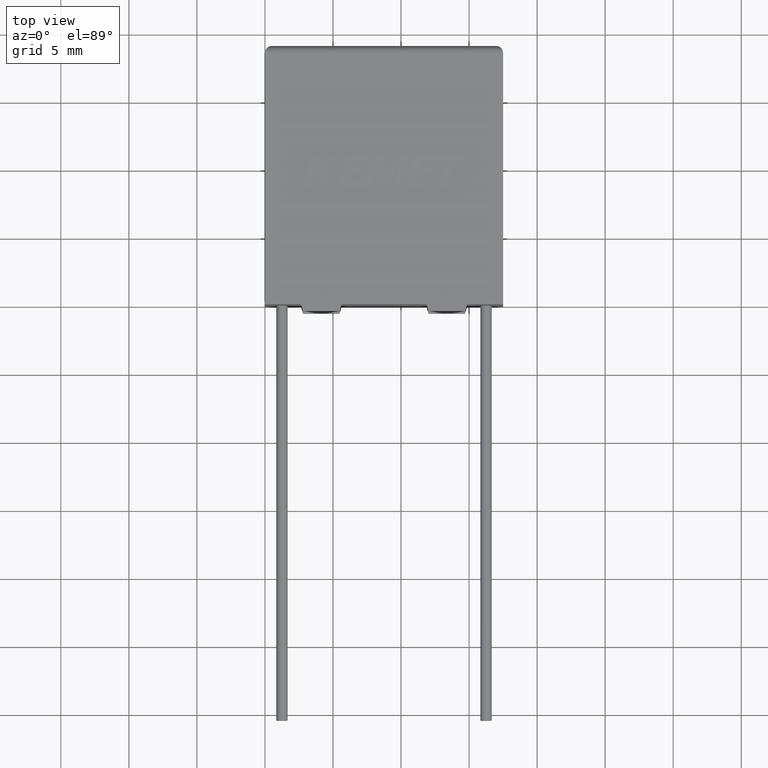
[diagram: clean part render]
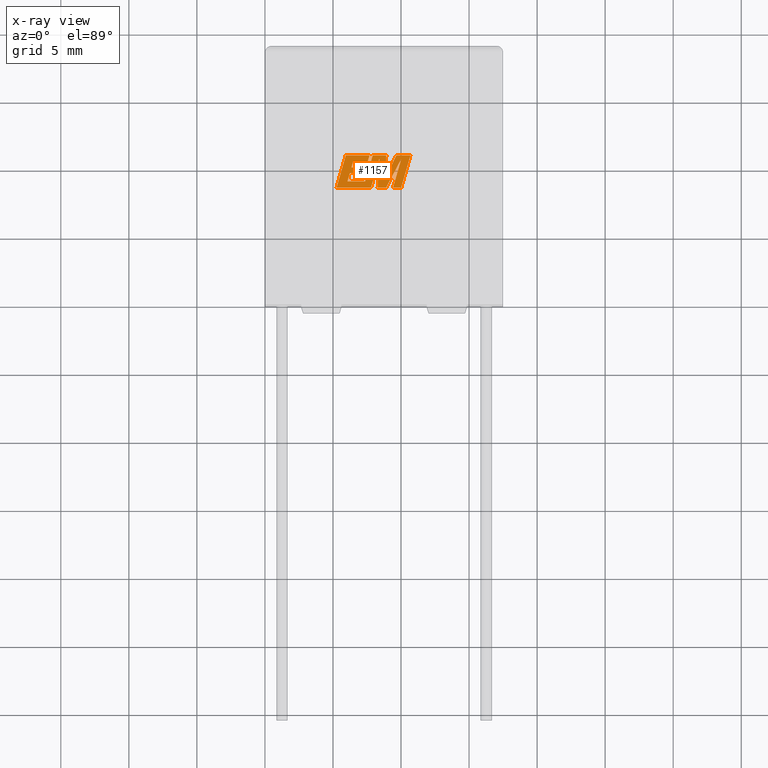
[diagram: x-ray — body ghosted, one internal face saturated and labeled with its STEP entity id]
A machine part, top view, then the same camera in x-ray: the body is ghosted and one INTERNAL B-rep face — a face not visible from any outside direction — is saturated and labeled: STEP entity #1157.
In plain terms, the highlighted planar face has unit normal (0, 0, -1).
Its self-contained STEP definition (entity closure, byte-faithful):
#4 = EDGE_CURVE ( 'NONE', #2884, #320, #2761, .T. ) ;
#30 = ORIENTED_EDGE ( 'NONE', *, *, #1995, .F. ) ;
#63 = DIRECTION ( 'NONE',  ( -1.000000000000000000, 0.0000000000000000000, 0.0000000000000000000 ) ) ;
#87 = VECTOR ( 'NONE', #94, 1000.000000000000000 ) ;
#92 = LINE ( 'NONE', #3004, #2033 ) ;
#94 = DIRECTION ( 'NONE',  ( -1.000000000000000000, 0.0000000000000000000, 0.0000000000000000000 ) ) ;
#98 = VERTEX_POINT ( 'NONE', #2930 ) ;
#112 = CARTESIAN_POINT ( 'NONE',  ( 10.69286888281140300, 10.94587608440335600, 11.50000000000000000 ) ) ;
#126 = VERTEX_POINT ( 'NONE', #1402 ) ;
#135 = CARTESIAN_POINT ( 'NONE',  ( 7.916534120704699100, 10.94587608440335600, 11.50000000000000000 ) ) ;
#180 = DIRECTION ( 'NONE',  ( -0.05596501978068205200, -0.9984327301130245800, 0.0000000000000000000 ) ) ;
#252 = LINE ( 'NONE', #2447, #1818 ) ;
#253 = VERTEX_POINT ( 'NONE', #2313 ) ;
#276 = CARTESIAN_POINT ( 'NONE',  ( 9.418876612286860400, 8.593699999999927300, 11.50000000000000000 ) ) ;
#295 = VECTOR ( 'NONE', #1948, 1000.000000000000000 ) ;
#315 = VECTOR ( 'NONE', #1599, 1000.000000000000000 ) ;
#320 = VERTEX_POINT ( 'NONE', #2705 ) ;
#356 = LINE ( 'NONE', #2773, #1270 ) ;
#367 = ORIENTED_EDGE ( 'NONE', *, *, #2107, .F. ) ;
#391 = CARTESIAN_POINT ( 'NONE',  ( 8.285257363114753900, 8.593699999999927300, 11.50000000000000000 ) ) ;
#419 = VECTOR ( 'NONE', #63, 1000.000000000000000 ) ;
#425 = CARTESIAN_POINT ( 'NONE',  ( 6.355773792693551800, 10.06064706458987200, 11.50000000000000000 ) ) ;
#430 = ORIENTED_EDGE ( 'NONE', *, *, #2641, .F. ) ;
#432 = EDGE_CURVE ( 'NONE', #2449, #2772, #2061, .T. ) ;
#469 = DIRECTION ( 'NONE',  ( -1.000000000000000000, 0.0000000000000000000, 0.0000000000000000000 ) ) ;
#505 = LINE ( 'NONE', #2106, #776 ) ;
#553 = CARTESIAN_POINT ( 'NONE',  ( 5.267348260593836400, 8.593699999999927300, 11.50000000000000000 ) ) ;
#580 = CARTESIAN_POINT ( 'NONE',  ( 7.554755503892309300, 10.49815144438163000, 11.50000000000000000 ) ) ;
#616 = VECTOR ( 'NONE', #3125, 1000.000000000000000 ) ;
#628 = VERTEX_POINT ( 'NONE', #2254 ) ;
#644 = CARTESIAN_POINT ( 'NONE',  ( 7.681918713741795900, 10.94587608440335600, 11.50000000000000000 ) ) ;
#674 = PLANE ( 'NONE',  #850 ) ;
#687 = ORIENTED_EDGE ( 'NONE', *, *, #810, .F. ) ;
#698 = VECTOR ( 'NONE', #2800, 1000.000000000000100 ) ;
#716 = LINE ( 'NONE', #1410, #1181 ) ;
#753 = VERTEX_POINT ( 'NONE', #1043 ) ;
#756 = CARTESIAN_POINT ( 'NONE',  ( 8.912326471646855100, 8.593699999999927300, 11.50000000000000000 ) ) ;
#776 = VECTOR ( 'NONE', #1890, 1000.000000000000100 ) ;
#792 = LINE ( 'NONE', #2195, #295 ) ;
#810 = EDGE_CURVE ( 'NONE', #1555, #3043, #2119, .T. ) ;
#824 = EDGE_CURVE ( 'NONE', #2592, #3222, #3024, .T. ) ;
#830 = VECTOR ( 'NONE', #1431, 1000.000000000000000 ) ;
#850 = AXIS2_PLACEMENT_3D ( 'NONE', #2420, #1434, #3183 ) ;
#851 = CARTESIAN_POINT ( 'NONE',  ( 8.912326471646855100, 8.593699999999927300, 11.50000000000000000 ) ) ;
#903 = VECTOR ( 'NONE', #1914, 1000.000000000000000 ) ;
#908 = ORIENTED_EDGE ( 'NONE', *, *, #2764, .F. ) ;
#912 = DIRECTION ( 'NONE',  ( 1.000000000000000000, 4.833865254349439700E-015, 0.0000000000000000000 ) ) ;
#934 = CARTESIAN_POINT ( 'NONE',  ( 7.241153005273329100, 9.625810394430523300, 11.50000000000000000 ) ) ;
#953 = FACE_OUTER_BOUND ( 'NONE', #1250, .T. ) ;
#961 = LINE ( 'NONE', #1840, #315 ) ;
#974 = EDGE_CURVE ( 'NONE', #2543, #2449, #1205, .T. ) ;
#983 = VERTEX_POINT ( 'NONE', #135 ) ;
#1036 = EDGE_CURVE ( 'NONE', #1734, #2733, #505, .T. ) ;
#1043 = CARTESIAN_POINT ( 'NONE',  ( 6.065143635469668800, 9.041202926892678300, 11.50000000000000000 ) ) ;
#1056 = EDGE_CURVE ( 'NONE', #2654, #3140, #2516, .T. ) ;
#1064 = ORIENTED_EDGE ( 'NONE', *, *, #974, .F. ) ;
#1111 = CARTESIAN_POINT ( 'NONE',  ( 6.483080043273763400, 10.49815144438163000, 11.50000000000000000 ) ) ;
#1133 = VECTOR ( 'NONE', #2717, 1000.000000000000100 ) ;
#1157 = ADVANCED_FACE ( 'NONE', ( #953 ), #674, .T. ) ;
#1181 = VECTOR ( 'NONE', #912, 1000.000000000000000 ) ;
#1205 = LINE ( 'NONE', #1111, #616 ) ;
#1209 = EDGE_CURVE ( 'NONE', #3087, #753, #3088, .T. ) ;
#1239 = CARTESIAN_POINT ( 'NONE',  ( 7.369060026916844000, 9.041202926892678300, 11.50000000000000000 ) ) ;
#1248 = CARTESIAN_POINT ( 'NONE',  ( 7.801364874262980600, 8.593699999999927300, 11.50000000000000000 ) ) ;
#1250 = EDGE_LOOP ( 'NONE', ( #1953, #908, #1791, #2639, #2385, #3089, #1984, #2550, #3055, #2861, #367, #1707, #1064, #1312, #1583, #30, #687, #1397, #1622, #430, #2954, #2306, #2214 ) ) ;
#1263 = VECTOR ( 'NONE', #2042, 1000.000000000000100 ) ;
#1270 = VECTOR ( 'NONE', #1511, 1000.000000000000100 ) ;
#1286 = EDGE_CURVE ( 'NONE', #126, #1322, #3199, .T. ) ;
#1303 = CARTESIAN_POINT ( 'NONE',  ( 7.365355271991178100, 10.06064706458987200, 11.50000000000000000 ) ) ;
#1312 = ORIENTED_EDGE ( 'NONE', *, *, #3071, .F. ) ;
#1313 = CARTESIAN_POINT ( 'NONE',  ( 7.369060026916844000, 9.041202926892678300, 11.50000000000000000 ) ) ;
#1322 = VERTEX_POINT ( 'NONE', #553 ) ;
#1346 = DIRECTION ( 'NONE',  ( 0.4668459304955211400, 0.8843386665637611400, 0.0000000000000000000 ) ) ;
#1369 = LINE ( 'NONE', #1528, #1263 ) ;
#1397 = ORIENTED_EDGE ( 'NONE', *, *, #2282, .F. ) ;
#1402 = CARTESIAN_POINT ( 'NONE',  ( 5.944209849470560400, 10.94587608440335600, 11.50000000000000000 ) ) ;
#1410 = CARTESIAN_POINT ( 'NONE',  ( 7.382684654667560400, 8.593699999999927300, 11.50000000000000000 ) ) ;
#1414 = LINE ( 'NONE', #112, #87 ) ;
#1431 = DIRECTION ( 'NONE',  ( -0.4443210308329059200, -0.8958676361827030400, 0.0000000000000000000 ) ) ;
#1434 = DIRECTION ( 'NONE',  ( 0.0000000000000000000, 0.0000000000000000000, -1.000000000000000000 ) ) ;
#1503 = LINE ( 'NONE', #851, #2912 ) ;
#1511 = DIRECTION ( 'NONE',  ( 0.2740217765954066100, 0.9617234872620595800, 0.0000000000000000000 ) ) ;
#1513 = CARTESIAN_POINT ( 'NONE',  ( 7.554755503892309300, 10.49815144438163000, 11.50000000000000000 ) ) ;
#1517 = EDGE_CURVE ( 'NONE', #253, #1734, #2188, .T. ) ;
#1528 = CARTESIAN_POINT ( 'NONE',  ( 7.801364874262980600, 8.593699999999927300, 11.50000000000000000 ) ) ;
#1555 = VERTEX_POINT ( 'NONE', #1924 ) ;
#1583 = ORIENTED_EDGE ( 'NONE', *, *, #824, .F. ) ;
#1594 = CARTESIAN_POINT ( 'NONE',  ( 7.365355271991178100, 10.06064706458987200, 11.50000000000000000 ) ) ;
#1599 = DIRECTION ( 'NONE',  ( 0.2793947940878287500, 0.9601763114327596100, 0.0000000000000000000 ) ) ;
#1622 = ORIENTED_EDGE ( 'NONE', *, *, #1209, .F. ) ;
#1649 = LINE ( 'NONE', #3173, #2170 ) ;
#1653 = VECTOR ( 'NONE', #2127, 1000.000000000000000 ) ;
#1665 = CARTESIAN_POINT ( 'NONE',  ( 9.418876612286860400, 8.593699999999927300, 11.50000000000000000 ) ) ;
#1676 = DIRECTION ( 'NONE',  ( 1.000000000000000000, 0.0000000000000000000, 0.0000000000000000000 ) ) ;
#1690 = VECTOR ( 'NONE', #1676, 1000.000000000000000 ) ;
#1707 = ORIENTED_EDGE ( 'NONE', *, *, #432, .F. ) ;
#1734 = VERTEX_POINT ( 'NONE', #2235 ) ;
#1783 = CARTESIAN_POINT ( 'NONE',  ( 5.944209849470560400, 10.94587608440335600, 11.50000000000000000 ) ) ;
#1789 = EDGE_CURVE ( 'NONE', #2733, #983, #1830, .T. ) ;
#1791 = ORIENTED_EDGE ( 'NONE', *, *, #4, .F. ) ;
#1818 = VECTOR ( 'NONE', #2400, 1000.000000000000100 ) ;
#1830 = LINE ( 'NONE', #2135, #903 ) ;
#1840 = CARTESIAN_POINT ( 'NONE',  ( 6.355773792693551800, 10.06064706458987200, 11.50000000000000000 ) ) ;
#1890 = DIRECTION ( 'NONE',  ( 0.05375259206908267900, 0.9985542843760947300, 0.0000000000000000000 ) ) ;
#1896 = EDGE_CURVE ( 'NONE', #1322, #2365, #716, .T. ) ;
#1914 = DIRECTION ( 'NONE',  ( -1.000000000000000000, 0.0000000000000000000, 0.0000000000000000000 ) ) ;
#1921 = VECTOR ( 'NONE', #3041, 1000.000000000000000 ) ;
#1924 = CARTESIAN_POINT ( 'NONE',  ( 6.231714566706590300, 9.625810394430523300, 11.50000000000000000 ) ) ;
#1939 = LINE ( 'NONE', #2384, #1653 ) ;
#1948 = DIRECTION ( 'NONE',  ( -1.000000000000000000, 0.0000000000000000000, 0.0000000000000000000 ) ) ;
#1953 = ORIENTED_EDGE ( 'NONE', *, *, #2609, .F. ) ;
#1958 = CARTESIAN_POINT ( 'NONE',  ( 8.918242698049985200, 10.94587608440335600, 11.50000000000000000 ) ) ;
#1984 = ORIENTED_EDGE ( 'NONE', *, *, #1056, .F. ) ;
#1995 = EDGE_CURVE ( 'NONE', #3043, #2592, #3139, .T. ) ;
#2025 = DIRECTION ( 'NONE',  ( -0.2760118818968562100, -0.9611542233438689100, 0.0000000000000000000 ) ) ;
#2033 = VECTOR ( 'NONE', #2025, 1000.000000000000200 ) ;
#2042 = DIRECTION ( 'NONE',  ( 0.2759782365590801000, 0.9611638845408936300, 0.0000000000000000000 ) ) ;
#2061 = LINE ( 'NONE', #1513, #698 ) ;
#2106 = CARTESIAN_POINT ( 'NONE',  ( 8.827784731893460800, 9.265451267950634700, 11.50000000000000000 ) ) ;
#2107 = EDGE_CURVE ( 'NONE', #2772, #126, #792, .T. ) ;
#2119 = LINE ( 'NONE', #2816, #2866 ) ;
#2127 = DIRECTION ( 'NONE',  ( -0.2762517575166160700, -0.9610853065513907900, 0.0000000000000000000 ) ) ;
#2135 = CARTESIAN_POINT ( 'NONE',  ( 8.918242698049985200, 10.94587608440335600, 11.50000000000000000 ) ) ;
#2170 = VECTOR ( 'NONE', #2910, 1000.000000000000000 ) ;
#2188 = LINE ( 'NONE', #3178, #830 ) ;
#2195 = CARTESIAN_POINT ( 'NONE',  ( 7.681918713741795900, 10.94587608440335600, 11.50000000000000000 ) ) ;
#2214 = ORIENTED_EDGE ( 'NONE', *, *, #1517, .F. ) ;
#2235 = CARTESIAN_POINT ( 'NONE',  ( 8.827784731893460800, 9.265451267950634700, 11.50000000000000000 ) ) ;
#2254 = CARTESIAN_POINT ( 'NONE',  ( 10.02312357218991500, 10.69786491298199300, 11.50000000000000000 ) ) ;
#2282 = EDGE_CURVE ( 'NONE', #753, #1555, #356, .T. ) ;
#2306 = ORIENTED_EDGE ( 'NONE', *, *, #1036, .F. ) ;
#2313 = CARTESIAN_POINT ( 'NONE',  ( 9.661220449992331500, 10.94587608440335600, 11.50000000000000000 ) ) ;
#2317 = VERTEX_POINT ( 'NONE', #756 ) ;
#2338 = EDGE_CURVE ( 'NONE', #628, #2884, #92, .T. ) ;
#2353 = VECTOR ( 'NONE', #469, 1000.000000000000000 ) ;
#2356 = CARTESIAN_POINT ( 'NONE',  ( 7.241153005273329100, 9.625810394430523300, 11.50000000000000000 ) ) ;
#2365 = VERTEX_POINT ( 'NONE', #1248 ) ;
#2384 = CARTESIAN_POINT ( 'NONE',  ( 7.916534120704699100, 10.94587608440335600, 11.50000000000000000 ) ) ;
#2385 = ORIENTED_EDGE ( 'NONE', *, *, #2524, .F. ) ;
#2400 = DIRECTION ( 'NONE',  ( 0.2763139702539115800, 0.9610674221107072800, 0.0000000000000000000 ) ) ;
#2420 = CARTESIAN_POINT ( 'NONE',  ( 0.07943521965645371200, -4.458355050973589000, 11.49999999999999600 ) ) ;
#2427 = CARTESIAN_POINT ( 'NONE',  ( 8.402636586962369600, 10.68778054145226400, 11.50000000000000000 ) ) ;
#2447 = CARTESIAN_POINT ( 'NONE',  ( 10.01660091485718100, 8.593699999999927300, 11.50000000000000000 ) ) ;
#2449 = VERTEX_POINT ( 'NONE', #580 ) ;
#2516 = LINE ( 'NONE', #2427, #2713 ) ;
#2524 = EDGE_CURVE ( 'NONE', #2317, #628, #1503, .T. ) ;
#2543 = VERTEX_POINT ( 'NONE', #2870 ) ;
#2550 = ORIENTED_EDGE ( 'NONE', *, *, #2921, .F. ) ;
#2581 = DIRECTION ( 'NONE',  ( 1.000000000000000000, 0.0000000000000000000, 0.0000000000000000000 ) ) ;
#2592 = VERTEX_POINT ( 'NONE', #1594 ) ;
#2609 = EDGE_CURVE ( 'NONE', #98, #253, #1414, .T. ) ;
#2639 = ORIENTED_EDGE ( 'NONE', *, *, #2338, .F. ) ;
#2641 = EDGE_CURVE ( 'NONE', #983, #3087, #1939, .T. ) ;
#2654 = VERTEX_POINT ( 'NONE', #2944 ) ;
#2705 = CARTESIAN_POINT ( 'NONE',  ( 10.01660091485718100, 8.593699999999927300, 11.50000000000000000 ) ) ;
#2713 = VECTOR ( 'NONE', #180, 1000.000000000000200 ) ;
#2717 = DIRECTION ( 'NONE',  ( 0.2746459304916904500, 0.9615454294334477800, 0.0000000000000000000 ) ) ;
#2733 = VERTEX_POINT ( 'NONE', #1958 ) ;
#2745 = EDGE_CURVE ( 'NONE', #3140, #2317, #1649, .T. ) ;
#2761 = LINE ( 'NONE', #1665, #1690 ) ;
#2764 = EDGE_CURVE ( 'NONE', #320, #98, #252, .T. ) ;
#2772 = VERTEX_POINT ( 'NONE', #644 ) ;
#2773 = CARTESIAN_POINT ( 'NONE',  ( 6.065143635469668800, 9.041202926892678300, 11.50000000000000000 ) ) ;
#2800 = DIRECTION ( 'NONE',  ( 0.2732148821745925000, 0.9619530280415585800, 0.0000000000000000000 ) ) ;
#2816 = CARTESIAN_POINT ( 'NONE',  ( 6.231714566706590300, 9.625810394430523300, 11.50000000000000000 ) ) ;
#2861 = ORIENTED_EDGE ( 'NONE', *, *, #1286, .F. ) ;
#2866 = VECTOR ( 'NONE', #2581, 1000.000000000000000 ) ;
#2870 = CARTESIAN_POINT ( 'NONE',  ( 6.483080043273763400, 10.49815144438163000, 11.50000000000000000 ) ) ;
#2884 = VERTEX_POINT ( 'NONE', #276 ) ;
#2910 = DIRECTION ( 'NONE',  ( 1.000000000000000000, 0.0000000000000000000, 0.0000000000000000000 ) ) ;
#2912 = VECTOR ( 'NONE', #1346, 1000.000000000000200 ) ;
#2921 = EDGE_CURVE ( 'NONE', #2365, #2654, #1369, .T. ) ;
#2930 = CARTESIAN_POINT ( 'NONE',  ( 10.69286888281140300, 10.94587608440335600, 11.50000000000000000 ) ) ;
#2944 = CARTESIAN_POINT ( 'NONE',  ( 8.402636586962369600, 10.68778054145226400, 11.50000000000000000 ) ) ;
#2954 = ORIENTED_EDGE ( 'NONE', *, *, #1789, .F. ) ;
#3004 = CARTESIAN_POINT ( 'NONE',  ( 10.02312357218991500, 10.69786491298199300, 11.50000000000000000 ) ) ;
#3024 = LINE ( 'NONE', #1303, #419 ) ;
#3041 = DIRECTION ( 'NONE',  ( -0.2765379750249959400, -0.9610029908221278100, 0.0000000000000000000 ) ) ;
#3043 = VERTEX_POINT ( 'NONE', #2356 ) ;
#3055 = ORIENTED_EDGE ( 'NONE', *, *, #1896, .F. ) ;
#3071 = EDGE_CURVE ( 'NONE', #3222, #2543, #961, .T. ) ;
#3087 = VERTEX_POINT ( 'NONE', #1313 ) ;
#3088 = LINE ( 'NONE', #1239, #2353 ) ;
#3089 = ORIENTED_EDGE ( 'NONE', *, *, #2745, .F. ) ;
#3125 = DIRECTION ( 'NONE',  ( 1.000000000000000000, 0.0000000000000000000, 0.0000000000000000000 ) ) ;
#3139 = LINE ( 'NONE', #934, #1133 ) ;
#3140 = VERTEX_POINT ( 'NONE', #391 ) ;
#3173 = CARTESIAN_POINT ( 'NONE',  ( 8.285257363114753900, 8.593699999999927300, 11.50000000000000000 ) ) ;
#3178 = CARTESIAN_POINT ( 'NONE',  ( 9.661220449992331500, 10.94587608440335600, 11.50000000000000000 ) ) ;
#3183 = DIRECTION ( 'NONE',  ( -1.000000000000000000, 0.0000000000000000000, 0.0000000000000000000 ) ) ;
#3199 = LINE ( 'NONE', #1783, #1921 ) ;
#3222 = VERTEX_POINT ( 'NONE', #425 ) ;